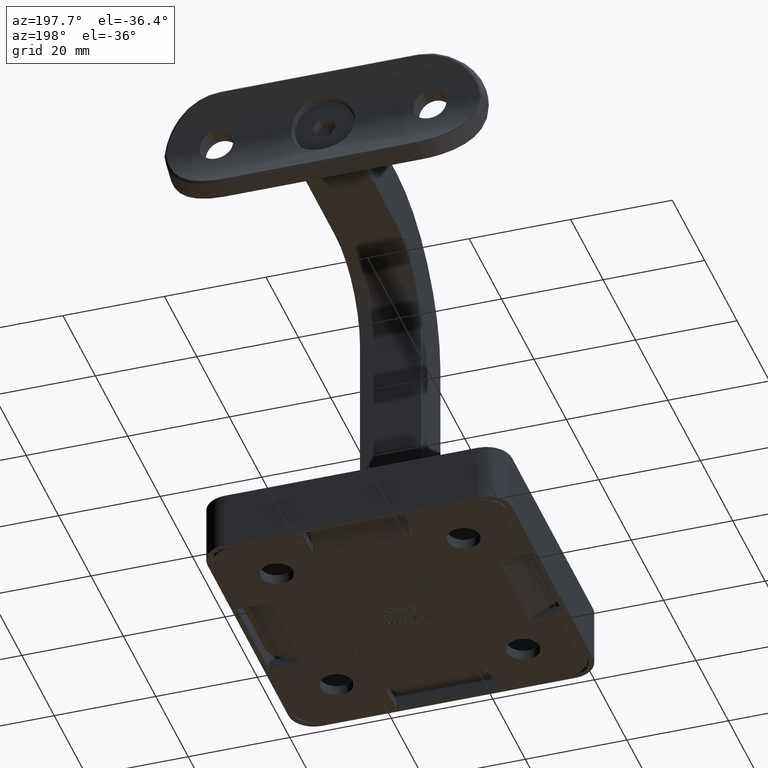
[diagram: clean part render]
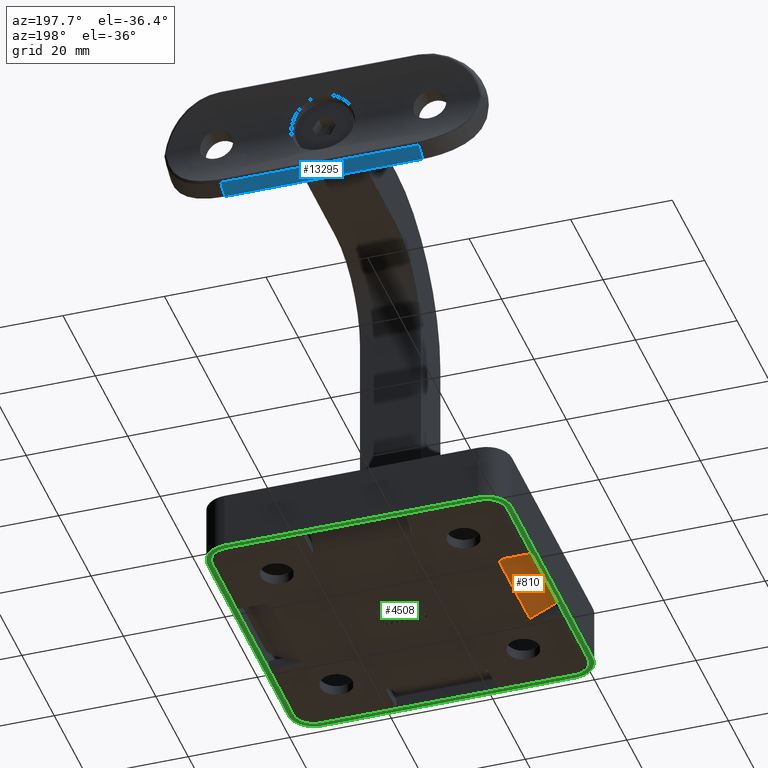
[diagram: same view with three faces highlighted in distinct colors, each labeled with its STEP entity id]
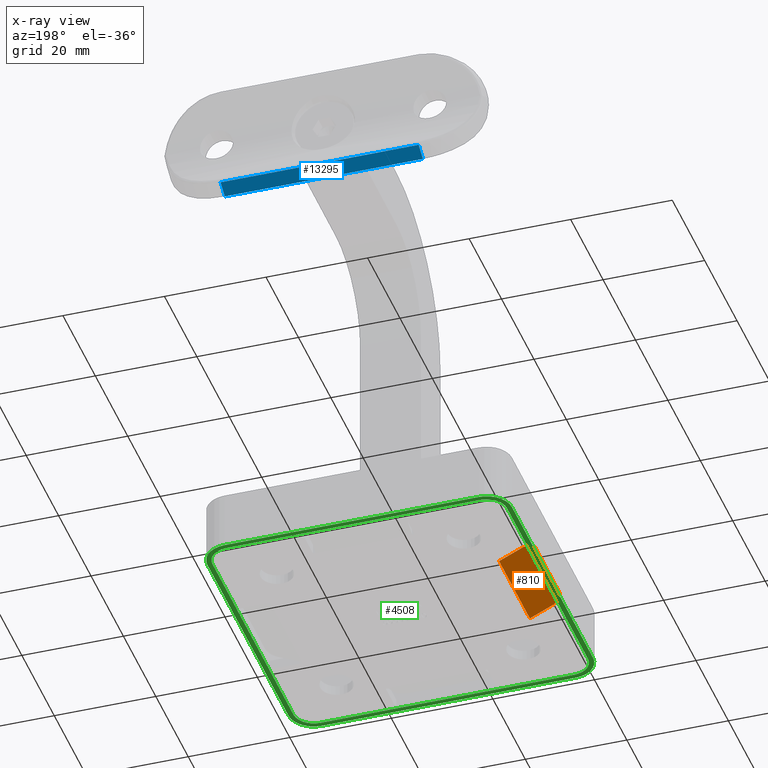
[diagram: x-ray of the same camera — body ghosted, the three highlighted faces saturated]
A machine part, auxiliary view with three faces highlighted in distinct colors.
The next image is the same camera in x-ray (body ghosted, the three faces saturated) — at least one of them is partly hidden behind the body in this view.
Their STEP definitions:

[orange] entity #810 — the highlighted planar face has unit normal (-0.4226, 0, -0.9063).
#130 = CARTESIAN_POINT ( 'NONE',  ( 1.329589781457156171E-20, 21.50000000000000355, 3.030999778007445133 ) ) ;
#197 = CARTESIAN_POINT ( 'NONE',  ( 1.434762971647439685E-16, 20.32842712474619162, 3.030999778007444689 ) ) ;
#219 = LINE ( 'NONE', #12760, #9168 ) ;
#737 = ORIENTED_EDGE ( 'NONE', *, *, #9812, .T. ) ;
#810 = ADVANCED_FACE ( 'NONE', ( #2327 ), #4285, .T. ) ;
#1487 = DIRECTION ( 'NONE',  ( -0.9063077870366523792, 0.000000000000000000, 0.4226182617406942232 ) ) ;
#1571 = DIRECTION ( 'NONE',  ( 0.000000000000000000, 1.000000000000000000, 0.000000000000000000 ) ) ;
#1938 = AXIS2_PLACEMENT_3D ( 'NONE', #18524, #13917, #9154 ) ;
#2327 = FACE_OUTER_BOUND ( 'NONE', #7147, .T. ) ;
#2340 = CARTESIAN_POINT ( 'NONE',  ( 1.999999999999999112, 38.50000000000000000, 2.098384461697462289 ) ) ;
#2842 = ORIENTED_EDGE ( 'NONE', *, *, #17578, .F. ) ;
#2983 = ORIENTED_EDGE ( 'NONE', *, *, #4046, .T. ) ;
#2996 = VECTOR ( 'NONE', #1571, 1000.000000000000000 ) ;
#3211 = CARTESIAN_POINT ( 'NONE',  ( 1.329589781457156171E-20, 36.50000000000000000, 3.030999778007445133 ) ) ;
#3285 = CARTESIAN_POINT ( 'NONE',  ( 1.999999999999999112, 38.50000000000000000, 2.098384461697462289 ) ) ;
#3977 = CARTESIAN_POINT ( 'NONE',  ( 6.500000000000000000, 38.50000000000000000, 0.000000000000000000 ) ) ;
#4046 = EDGE_CURVE ( 'NONE', #15337, #7575, #11861, .T. ) ;
#4285 = PLANE ( 'NONE',  #1938 ) ;
#4370 = LINE ( 'NONE', #3977, #16764 ) ;
#4755 = CARTESIAN_POINT ( 'NONE',  ( 0.000000000000000000, 37.67157287525380838, 3.030999778007444689 ) ) ;
#4914 = CARTESIAN_POINT ( 'NONE',  ( 6.500000000000000000, 38.50000000000000000, 0.000000000000000000 ) ) ;
#4954 = ORIENTED_EDGE ( 'NONE', *, *, #13117, .F. ) ;
#7139 = EDGE_CURVE ( 'NONE', #11707, #15337, #15419, .T. ) ;
#7147 = EDGE_LOOP ( 'NONE', ( #737, #18685, #4954, #2842, #19065, #2983 ) ) ;
#7575 = VERTEX_POINT ( 'NONE', #10155 ) ;
#8215 = CARTESIAN_POINT ( 'NONE',  ( 0.8284271247461897358, 38.49999999999999289, 2.644697865514975987 ) ) ;
#8446 = CARTESIAN_POINT ( 'NONE',  ( 6.500000000000000000, 19.50000000000000355, 0.000000000000000000 ) ) ;
#9154 = DIRECTION ( 'NONE',  ( -0.9063077870366523792, 0.000000000000000000, 0.4226182617406942232 ) ) ;
#9168 = VECTOR ( 'NONE', #17672, 1000.000000000000000 ) ;
#9434 = CARTESIAN_POINT ( 'NONE',  ( 6.500000000000000000, 19.50000000000000355, 0.000000000000000000 ) ) ;
#9812 = EDGE_CURVE ( 'NONE', #7575, #19731, #219, .T. ) ;
#9831 = EDGE_CURVE ( 'NONE', #19731, #12270, #13991, .T. ) ;
#10065 = DIRECTION ( 'NONE',  ( -0.9063077870366523792, 0.000000000000000000, 0.4226182617406942232 ) ) ;
#10155 = CARTESIAN_POINT ( 'NONE',  ( 1.329589781457156171E-20, 21.50000000000000355, 3.030999778007445133 ) ) ;
#11216 = LINE ( 'NONE', #9434, #2996 ) ;
#11707 = VERTEX_POINT ( 'NONE', #12046 ) ;
#11861 =( BOUNDED_CURVE ( )  B_SPLINE_CURVE ( 3, ( #12902, #16183, #197, #130 ),
 .UNSPECIFIED., .F., .T. ) 
 B_SPLINE_CURVE_WITH_KNOTS ( ( 4, 4 ),
 ( 1.570796326794896558, 3.141592653589793116 ),
 .UNSPECIFIED. ) 
 CURVE ( )  GEOMETRIC_REPRESENTATION_ITEM ( )  RATIONAL_B_SPLINE_CURVE ( ( 1.000000000000000000, 0.8047378541243649375, 0.8047378541243649375, 1.000000000000000000 ) ) 
 REPRESENTATION_ITEM ( '' )  );
#12046 = CARTESIAN_POINT ( 'NONE',  ( 6.500000000000000000, 19.50000000000000355, 0.000000000000000000 ) ) ;
#12270 = VERTEX_POINT ( 'NONE', #2340 ) ;
#12760 = CARTESIAN_POINT ( 'NONE',  ( 1.329589781457156171E-20, 19.50000000000000355, 3.030999778007445133 ) ) ;
#12902 = CARTESIAN_POINT ( 'NONE',  ( 2.000000000000000000, 19.50000000000000355, 2.098384461697461845 ) ) ;
#13117 = EDGE_CURVE ( 'NONE', #20483, #12270, #4370, .T. ) ;
#13356 = CARTESIAN_POINT ( 'NONE',  ( 1.329589781457156171E-20, 36.50000000000000000, 3.030999778007445133 ) ) ;
#13917 = DIRECTION ( 'NONE',  ( -0.4226182617406942232, 0.000000000000000000, -0.9063077870366523792 ) ) ;
#13991 =( BOUNDED_CURVE ( )  B_SPLINE_CURVE ( 3, ( #3211, #4755, #8215, #3285 ),
 .UNSPECIFIED., .F., .F. ) 
 B_SPLINE_CURVE_WITH_KNOTS ( ( 4, 4 ),
 ( 0.000000000000000000, 1.570796326794896114 ),
 .UNSPECIFIED. ) 
 CURVE ( )  GEOMETRIC_REPRESENTATION_ITEM ( )  RATIONAL_B_SPLINE_CURVE ( ( 1.000000000000000000, 0.8047378541243650485, 0.8047378541243650485, 1.000000000000000000 ) ) 
 REPRESENTATION_ITEM ( '' )  );
#15223 = CARTESIAN_POINT ( 'NONE',  ( 2.000000000000000000, 19.50000000000000355, 2.098384461697461845 ) ) ;
#15337 = VERTEX_POINT ( 'NONE', #15223 ) ;
#15419 = LINE ( 'NONE', #8446, #19111 ) ;
#16183 = CARTESIAN_POINT ( 'NONE',  ( 0.8284271247461899579, 19.50000000000000355, 2.644697865514975987 ) ) ;
#16764 = VECTOR ( 'NONE', #1487, 1000.000000000000000 ) ;
#17578 = EDGE_CURVE ( 'NONE', #11707, #20483, #11216, .T. ) ;
#17672 = DIRECTION ( 'NONE',  ( 0.000000000000000000, 1.000000000000000000, 0.000000000000000000 ) ) ;
#18524 = CARTESIAN_POINT ( 'NONE',  ( 6.500000000000000000, 19.50000000000000355, 0.000000000000000000 ) ) ;
#18685 = ORIENTED_EDGE ( 'NONE', *, *, #9831, .T. ) ;
#19065 = ORIENTED_EDGE ( 'NONE', *, *, #7139, .T. ) ;
#19111 = VECTOR ( 'NONE', #10065, 1000.000000000000000 ) ;
#19731 = VERTEX_POINT ( 'NONE', #13356 ) ;
#20483 = VERTEX_POINT ( 'NONE', #4914 ) ;

[blue] entity #13295 — the highlighted planar face has unit normal (0, 0.4858, -0.8741).
#480 = LINE ( 'NONE', #1578, #1228 ) ;
#727 = EDGE_CURVE ( 'NONE', #10520, #6050, #10445, .T. ) ;
#1006 = ORIENTED_EDGE ( 'NONE', *, *, #9863, .T. ) ;
#1228 = VECTOR ( 'NONE', #6496, 1000.000000000000114 ) ;
#1578 = CARTESIAN_POINT ( 'NONE',  ( -12.00000000000000178, -0.3891176290278242078, 19.50000000000000000 ) ) ;
#2788 = CARTESIAN_POINT ( 'NONE',  ( -10.53971119023871772, 2.238077944829623522, 19.50000000000000000 ) ) ;
#3377 = VECTOR ( 'NONE', #19448, 1000.000000000000114 ) ;
#3874 = LINE ( 'NONE', #5092, #3377 ) ;
#4731 = ORIENTED_EDGE ( 'NONE', *, *, #5645, .T. ) ;
#4918 = EDGE_LOOP ( 'NONE', ( #1006, #4731, #8050, #18335 ) ) ;
#5092 = CARTESIAN_POINT ( 'NONE',  ( -12.00000000000000178, -0.3891176290278255956, -19.50000000000000000 ) ) ;
#5297 = CARTESIAN_POINT ( 'NONE',  ( -12.00000000000000711, -0.3891176290278207661, 19.50000000000000000 ) ) ;
#5645 = EDGE_CURVE ( 'NONE', #9566, #9431, #17664, .T. ) ;
#6050 = VERTEX_POINT ( 'NONE', #19057 ) ;
#6496 = DIRECTION ( 'NONE',  ( 0.4858299595141704064, 0.8740533453047699686, -0.000000000000000000 ) ) ;
#6661 = PLANE ( 'NONE',  #10440 ) ;
#7411 = VECTOR ( 'NONE', #15167, 1000.000000000000000 ) ;
#8050 = ORIENTED_EDGE ( 'NONE', *, *, #13847, .T. ) ;
#8385 = DIRECTION ( 'NONE',  ( -0.4858299595141704064, -0.8740533453047699686, 0.000000000000000000 ) ) ;
#9431 = VERTEX_POINT ( 'NONE', #12035 ) ;
#9566 = VERTEX_POINT ( 'NONE', #2788 ) ;
#9863 = EDGE_CURVE ( 'NONE', #10520, #9566, #480, .T. ) ;
#10440 = AXIS2_PLACEMENT_3D ( 'NONE', #17640, #17853, #8385 ) ;
#10445 = LINE ( 'NONE', #15094, #7411 ) ;
#10520 = VERTEX_POINT ( 'NONE', #5297 ) ;
#12035 = CARTESIAN_POINT ( 'NONE',  ( -10.53971119023871772, 2.238077944829623078, -19.50000000000000000 ) ) ;
#13295 = ADVANCED_FACE ( 'NONE', ( #15771 ), #6661, .T. ) ;
#13494 = VECTOR ( 'NONE', #19087, 1000.000000000000000 ) ;
#13847 = EDGE_CURVE ( 'NONE', #9431, #6050, #3874, .T. ) ;
#14413 = CARTESIAN_POINT ( 'NONE',  ( -10.53971119023871772, 2.238077944829623078, 31.50000000000000000 ) ) ;
#15094 = CARTESIAN_POINT ( 'NONE',  ( -12.00000000000000711, -0.3891176290278207661, 31.50000000000000000 ) ) ;
#15167 = DIRECTION ( 'NONE',  ( -0.000000000000000000, -0.000000000000000000, -1.000000000000000000 ) ) ;
#15771 = FACE_OUTER_BOUND ( 'NONE', #4918, .T. ) ;
#17640 = CARTESIAN_POINT ( 'NONE',  ( -12.00000000000000178, -0.3891176290278242078, 31.50000000000000000 ) ) ;
#17664 = LINE ( 'NONE', #14413, #13494 ) ;
#17853 = DIRECTION ( 'NONE',  ( -0.8740533453047700796, 0.4858299595141704619, 0.000000000000000000 ) ) ;
#18335 = ORIENTED_EDGE ( 'NONE', *, *, #727, .F. ) ;
#19057 = CARTESIAN_POINT ( 'NONE',  ( -12.00000000000000711, -0.3891176290278207661, -19.50000000000000355 ) ) ;
#19087 = DIRECTION ( 'NONE',  ( 0.000000000000000000, 0.000000000000000000, -1.000000000000000000 ) ) ;
#19448 = DIRECTION ( 'NONE',  ( -0.4858299595141704064, -0.8740533453047699686, -0.000000000000000000 ) ) ;

[green] entity #4508 — the highlighted planar face has unit normal (0, 0, 1).
#70 = CIRCLE ( 'NONE', #16438, 4.000000000000000888 ) ;
#247 = ORIENTED_EDGE ( 'NONE', *, *, #4576, .F. ) ;
#405 = DIRECTION ( 'NONE',  ( 0.000000000000000000, -1.000000000000000000, 0.000000000000000000 ) ) ;
#415 = DIRECTION ( 'NONE',  ( 0.000000000000000000, 0.000000000000000000, 1.000000000000000000 ) ) ;
#577 = DIRECTION ( 'NONE',  ( -1.000000000000000000, 0.000000000000000000, 0.000000000000000000 ) ) ;
#763 = VECTOR ( 'NONE', #10802, 1000.000000000000000 ) ;
#816 = VECTOR ( 'NONE', #4802, 1000.000000000000000 ) ;
#846 = VERTEX_POINT ( 'NONE', #5887 ) ;
#936 = CARTESIAN_POINT ( 'NONE',  ( 5.000000000000035527, 0.000000000000000000, 0.000000000000000000 ) ) ;
#955 = CARTESIAN_POINT ( 'NONE',  ( 5.000000000000035527, 60.00000000000000000, 0.000000000000000000 ) ) ;
#1009 = ORIENTED_EDGE ( 'NONE', *, *, #7663, .F. ) ;
#1032 = PLANE ( 'NONE',  #13008 ) ;
#1052 = LINE ( 'NONE', #9919, #7989 ) ;
#1240 = CARTESIAN_POINT ( 'NONE',  ( 5.000000000000000000, 5.000000000000000000, 0.000000000000000000 ) ) ;
#1290 = CARTESIAN_POINT ( 'NONE',  ( 0.000000000000000000, 5.000000000000035527, 0.000000000000000000 ) ) ;
#1874 = VERTEX_POINT ( 'NONE', #5520 ) ;
#1950 = DIRECTION ( 'NONE',  ( 0.000000000000000000, 1.000000000000000000, -0.000000000000000000 ) ) ;
#1982 = CARTESIAN_POINT ( 'NONE',  ( 5.000000000000035527, 1.000000000000000000, 0.000000000000000000 ) ) ;
#1985 = ORIENTED_EDGE ( 'NONE', *, *, #3921, .T. ) ;
#2411 = VERTEX_POINT ( 'NONE', #7878 ) ;
#2526 = CARTESIAN_POINT ( 'NONE',  ( 54.99999999999996447, 1.000000000000000000, 0.000000000000000000 ) ) ;
#2560 = DIRECTION ( 'NONE',  ( 1.000000000000000000, 0.000000000000000000, 0.000000000000000000 ) ) ;
#2718 = VECTOR ( 'NONE', #1950, 1000.000000000000000 ) ;
#2775 = VERTEX_POINT ( 'NONE', #12503 ) ;
#2805 = EDGE_CURVE ( 'NONE', #2775, #14959, #10486, .T. ) ;
#3637 = DIRECTION ( 'NONE',  ( 0.000000000000000000, 0.000000000000000000, 1.000000000000000000 ) ) ;
#3921 = EDGE_CURVE ( 'NONE', #2411, #8954, #12749, .T. ) ;
#4081 = EDGE_CURVE ( 'NONE', #8954, #19861, #1052, .T. ) ;
#4227 = ORIENTED_EDGE ( 'NONE', *, *, #8383, .F. ) ;
#4508 = ADVANCED_FACE ( 'NONE', ( #12605, #7583 ), #1032, .F. ) ;
#4576 = EDGE_CURVE ( 'NONE', #846, #9440, #16439, .T. ) ;
#4604 = AXIS2_PLACEMENT_3D ( 'NONE', #12455, #15534, #7714 ) ;
#4802 = DIRECTION ( 'NONE',  ( 1.000000000000000000, 0.000000000000000000, 0.000000000000000000 ) ) ;
#4912 = CARTESIAN_POINT ( 'NONE',  ( 5.000000000000000000, 5.000000000000000000, 0.000000000000000000 ) ) ;
#5040 = VERTEX_POINT ( 'NONE', #1290 ) ;
#5520 = CARTESIAN_POINT ( 'NONE',  ( 59.00000000000000000, 5.000000000000028422, 0.000000000000000000 ) ) ;
#5522 = CARTESIAN_POINT ( 'NONE',  ( 1.000000000000000000, 5.000000000000035527, 0.000000000000000000 ) ) ;
#5716 = EDGE_CURVE ( 'NONE', #19800, #18042, #14224, .T. ) ;
#5847 = CARTESIAN_POINT ( 'NONE',  ( 54.99999999999996447, 8.673617379884035472E-16, 0.000000000000000000 ) ) ;
#5887 = CARTESIAN_POINT ( 'NONE',  ( 54.99999999999996447, 60.00000000000000000, 0.000000000000000000 ) ) ;
#6417 = EDGE_CURVE ( 'NONE', #17246, #6776, #13475, .T. ) ;
#6500 = VERTEX_POINT ( 'NONE', #17520 ) ;
#6539 = VECTOR ( 'NONE', #15220, 1000.000000000000000 ) ;
#6707 = LINE ( 'NONE', #8890, #18820 ) ;
#6715 = ORIENTED_EDGE ( 'NONE', *, *, #19417, .F. ) ;
#6717 = EDGE_CURVE ( 'NONE', #19861, #17246, #70, .T. ) ;
#6776 = VERTEX_POINT ( 'NONE', #2526 ) ;
#6777 = CARTESIAN_POINT ( 'NONE',  ( 0.000000000000000000, 54.99999999999996447, 0.000000000000000000 ) ) ;
#6916 = DIRECTION ( 'NONE',  ( 1.000000000000000000, 0.000000000000000000, 0.000000000000000000 ) ) ;
#7026 = ORIENTED_EDGE ( 'NONE', *, *, #2805, .T. ) ;
#7376 = DIRECTION ( 'NONE',  ( 0.000000000000000000, 0.000000000000000000, 1.000000000000000000 ) ) ;
#7404 = AXIS2_PLACEMENT_3D ( 'NONE', #20441, #17167, #12358 ) ;
#7423 = CARTESIAN_POINT ( 'NONE',  ( 5.000000000000035527, 60.00000000000000000, 0.000000000000000000 ) ) ;
#7580 = CARTESIAN_POINT ( 'NONE',  ( 0.000000000000000000, 5.000000000000035527, 0.000000000000000000 ) ) ;
#7583 = FACE_OUTER_BOUND ( 'NONE', #15780, .T. ) ;
#7649 = DIRECTION ( 'NONE',  ( 1.000000000000000000, 0.000000000000000000, 0.000000000000000000 ) ) ;
#7663 = EDGE_CURVE ( 'NONE', #18042, #12250, #12727, .T. ) ;
#7714 = DIRECTION ( 'NONE',  ( 1.000000000000000000, 0.000000000000000000, 0.000000000000000000 ) ) ;
#7724 = CIRCLE ( 'NONE', #17252, 5.000000000000000000 ) ;
#7789 = CARTESIAN_POINT ( 'NONE',  ( 5.000000000000035527, 1.000000000000000000, 0.000000000000000000 ) ) ;
#7878 = CARTESIAN_POINT ( 'NONE',  ( 5.000000000000035527, 59.00000000000000000, 0.000000000000000000 ) ) ;
#7898 = EDGE_CURVE ( 'NONE', #14959, #2411, #11702, .T. ) ;
#7942 = CIRCLE ( 'NONE', #9485, 4.999999999999998224 ) ;
#7989 = VECTOR ( 'NONE', #405, 1000.000000000000000 ) ;
#8259 = EDGE_CURVE ( 'NONE', #1874, #2775, #15879, .T. ) ;
#8383 = EDGE_CURVE ( 'NONE', #5040, #19800, #7724, .T. ) ;
#8463 = CIRCLE ( 'NONE', #14182, 3.999999999999996447 ) ;
#8730 = CARTESIAN_POINT ( 'NONE',  ( 60.00000000000000000, 5.000000000000035527, 0.000000000000000000 ) ) ;
#8765 = VECTOR ( 'NONE', #13041, 1000.000000000000000 ) ;
#8890 = CARTESIAN_POINT ( 'NONE',  ( 60.00000000000000000, 5.000000000000035527, 0.000000000000000000 ) ) ;
#8951 = CARTESIAN_POINT ( 'NONE',  ( 55.00000000000000000, 5.000000000000000000, 0.000000000000000000 ) ) ;
#8954 = VERTEX_POINT ( 'NONE', #18242 ) ;
#9008 = DIRECTION ( 'NONE',  ( 1.000000000000000000, 0.000000000000000000, -0.000000000000000000 ) ) ;
#9234 = VERTEX_POINT ( 'NONE', #6777 ) ;
#9353 = EDGE_CURVE ( 'NONE', #9440, #9234, #7942, .T. ) ;
#9440 = VERTEX_POINT ( 'NONE', #7423 ) ;
#9485 = AXIS2_PLACEMENT_3D ( 'NONE', #12166, #10507, #2560 ) ;
#9827 = ORIENTED_EDGE ( 'NONE', *, *, #7898, .T. ) ;
#9919 = CARTESIAN_POINT ( 'NONE',  ( 1.000000000000000000, 5.000000000000035527, 0.000000000000000000 ) ) ;
#10007 = CARTESIAN_POINT ( 'NONE',  ( 5.000000000000035527, 0.000000000000000000, 0.000000000000000000 ) ) ;
#10009 = CARTESIAN_POINT ( 'NONE',  ( 55.00000000000000000, 55.00000000000000000, 0.000000000000000000 ) ) ;
#10486 = CIRCLE ( 'NONE', #7404, 3.999999999999996447 ) ;
#10507 = DIRECTION ( 'NONE',  ( 0.000000000000000000, 0.000000000000000000, 1.000000000000000000 ) ) ;
#10590 = CIRCLE ( 'NONE', #17830, 4.999999999999997335 ) ;
#10756 = DIRECTION ( 'NONE',  ( 0.000000000000000000, 0.000000000000000000, 1.000000000000000000 ) ) ;
#10802 = DIRECTION ( 'NONE',  ( -0.000000000000000000, -1.000000000000000000, -0.000000000000000000 ) ) ;
#10869 = CARTESIAN_POINT ( 'NONE',  ( 55.00000000000000000, 5.000000000000000000, 0.000000000000000000 ) ) ;
#11474 = EDGE_LOOP ( 'NONE', ( #18643, #20226, #16695, #17851, #12321, #7026, #9827, #1985 ) ) ;
#11702 = LINE ( 'NONE', #13206, #11969 ) ;
#11969 = VECTOR ( 'NONE', #577, 1000.000000000000000 ) ;
#12166 = CARTESIAN_POINT ( 'NONE',  ( 5.000000000000000000, 55.00000000000000000, 0.000000000000000000 ) ) ;
#12250 = VERTEX_POINT ( 'NONE', #8730 ) ;
#12321 = ORIENTED_EDGE ( 'NONE', *, *, #8259, .T. ) ;
#12358 = DIRECTION ( 'NONE',  ( 1.000000000000000000, 0.000000000000000000, 0.000000000000000000 ) ) ;
#12446 = LINE ( 'NONE', #7580, #763 ) ;
#12455 = CARTESIAN_POINT ( 'NONE',  ( 5.000000000000000000, 55.00000000000000000, 0.000000000000000000 ) ) ;
#12503 = CARTESIAN_POINT ( 'NONE',  ( 59.00000000000000000, 54.99999999999996447, 0.000000000000000000 ) ) ;
#12605 = FACE_BOUND ( 'NONE', #11474, .T. ) ;
#12727 = CIRCLE ( 'NONE', #16583, 4.999999999999997335 ) ;
#12749 = CIRCLE ( 'NONE', #4604, 3.999999999999999112 ) ;
#12847 = DIRECTION ( 'NONE',  ( 1.000000000000000000, 0.000000000000000000, 0.000000000000000000 ) ) ;
#13008 = AXIS2_PLACEMENT_3D ( 'NONE', #1240, #10756, #9008 ) ;
#13041 = DIRECTION ( 'NONE',  ( 1.000000000000000000, 0.000000000000000000, 0.000000000000000000 ) ) ;
#13177 = DIRECTION ( 'NONE',  ( 0.000000000000000000, 0.000000000000000000, 1.000000000000000000 ) ) ;
#13206 = CARTESIAN_POINT ( 'NONE',  ( 5.000000000000035527, 59.00000000000000000, 0.000000000000000000 ) ) ;
#13242 = CARTESIAN_POINT ( 'NONE',  ( 5.000000000000000000, 5.000000000000000000, 0.000000000000000000 ) ) ;
#13279 = EDGE_CURVE ( 'NONE', #6500, #846, #10590, .T. ) ;
#13475 = LINE ( 'NONE', #7789, #816 ) ;
#13656 = ORIENTED_EDGE ( 'NONE', *, *, #13279, .F. ) ;
#14182 = AXIS2_PLACEMENT_3D ( 'NONE', #10869, #7376, #7649 ) ;
#14224 = LINE ( 'NONE', #10007, #8765 ) ;
#14959 = VERTEX_POINT ( 'NONE', #16542 ) ;
#15220 = DIRECTION ( 'NONE',  ( -1.000000000000000000, -0.000000000000000000, -0.000000000000000000 ) ) ;
#15534 = DIRECTION ( 'NONE',  ( 0.000000000000000000, 0.000000000000000000, 1.000000000000000000 ) ) ;
#15780 = EDGE_LOOP ( 'NONE', ( #4227, #18414, #20243, #247, #13656, #6715, #1009, #16478 ) ) ;
#15879 = LINE ( 'NONE', #18455, #2718 ) ;
#16060 = DIRECTION ( 'NONE',  ( -1.000000000000000000, 0.000000000000000000, 0.000000000000000000 ) ) ;
#16438 = AXIS2_PLACEMENT_3D ( 'NONE', #13242, #3637, #6916 ) ;
#16439 = LINE ( 'NONE', #955, #6539 ) ;
#16478 = ORIENTED_EDGE ( 'NONE', *, *, #5716, .F. ) ;
#16542 = CARTESIAN_POINT ( 'NONE',  ( 54.99999999999997158, 59.00000000000000000, 0.000000000000000000 ) ) ;
#16583 = AXIS2_PLACEMENT_3D ( 'NONE', #8951, #16818, #19905 ) ;
#16695 = ORIENTED_EDGE ( 'NONE', *, *, #6417, .T. ) ;
#16818 = DIRECTION ( 'NONE',  ( 0.000000000000000000, 0.000000000000000000, 1.000000000000000000 ) ) ;
#17167 = DIRECTION ( 'NONE',  ( 0.000000000000000000, 0.000000000000000000, 1.000000000000000000 ) ) ;
#17246 = VERTEX_POINT ( 'NONE', #1982 ) ;
#17252 = AXIS2_PLACEMENT_3D ( 'NONE', #4912, #415, #12847 ) ;
#17520 = CARTESIAN_POINT ( 'NONE',  ( 60.00000000000000000, 54.99999999999996447, 0.000000000000000000 ) ) ;
#17830 = AXIS2_PLACEMENT_3D ( 'NONE', #10009, #13177, #16060 ) ;
#17851 = ORIENTED_EDGE ( 'NONE', *, *, #20035, .T. ) ;
#18042 = VERTEX_POINT ( 'NONE', #5847 ) ;
#18242 = CARTESIAN_POINT ( 'NONE',  ( 1.000000000000000888, 54.99999999999997158, 0.000000000000000000 ) ) ;
#18414 = ORIENTED_EDGE ( 'NONE', *, *, #20067, .F. ) ;
#18455 = CARTESIAN_POINT ( 'NONE',  ( 59.00000000000000000, 5.000000000000035527, 0.000000000000000000 ) ) ;
#18643 = ORIENTED_EDGE ( 'NONE', *, *, #4081, .T. ) ;
#18820 = VECTOR ( 'NONE', #19717, 1000.000000000000000 ) ;
#19417 = EDGE_CURVE ( 'NONE', #12250, #6500, #6707, .T. ) ;
#19717 = DIRECTION ( 'NONE',  ( 0.000000000000000000, 1.000000000000000000, 0.000000000000000000 ) ) ;
#19800 = VERTEX_POINT ( 'NONE', #936 ) ;
#19861 = VERTEX_POINT ( 'NONE', #5522 ) ;
#19905 = DIRECTION ( 'NONE',  ( -1.000000000000000000, 0.000000000000000000, 0.000000000000000000 ) ) ;
#20035 = EDGE_CURVE ( 'NONE', #6776, #1874, #8463, .T. ) ;
#20067 = EDGE_CURVE ( 'NONE', #9234, #5040, #12446, .T. ) ;
#20226 = ORIENTED_EDGE ( 'NONE', *, *, #6717, .T. ) ;
#20243 = ORIENTED_EDGE ( 'NONE', *, *, #9353, .F. ) ;
#20441 = CARTESIAN_POINT ( 'NONE',  ( 55.00000000000000000, 55.00000000000000000, 0.000000000000000000 ) ) ;